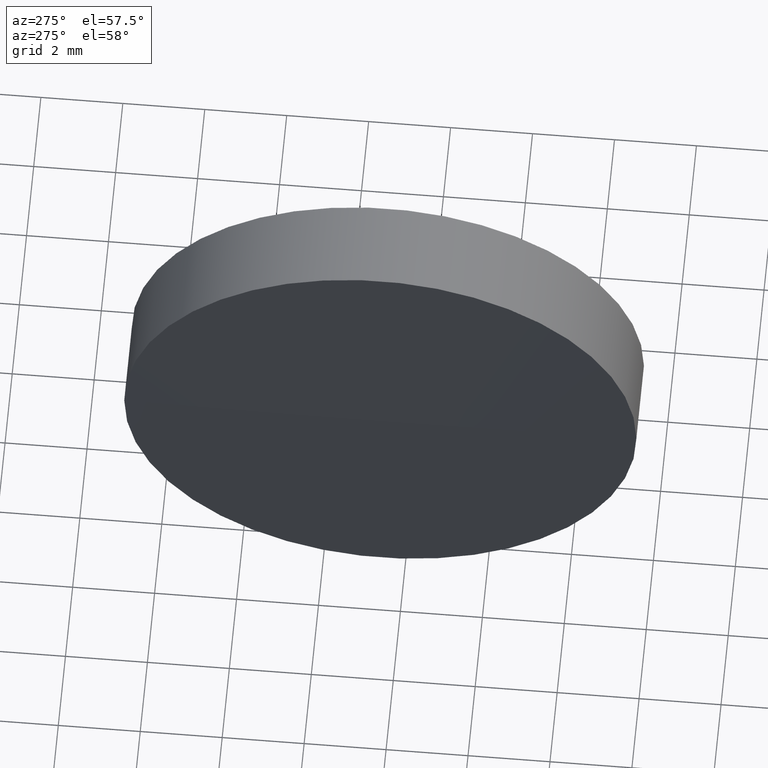
[diagram: clean part render]
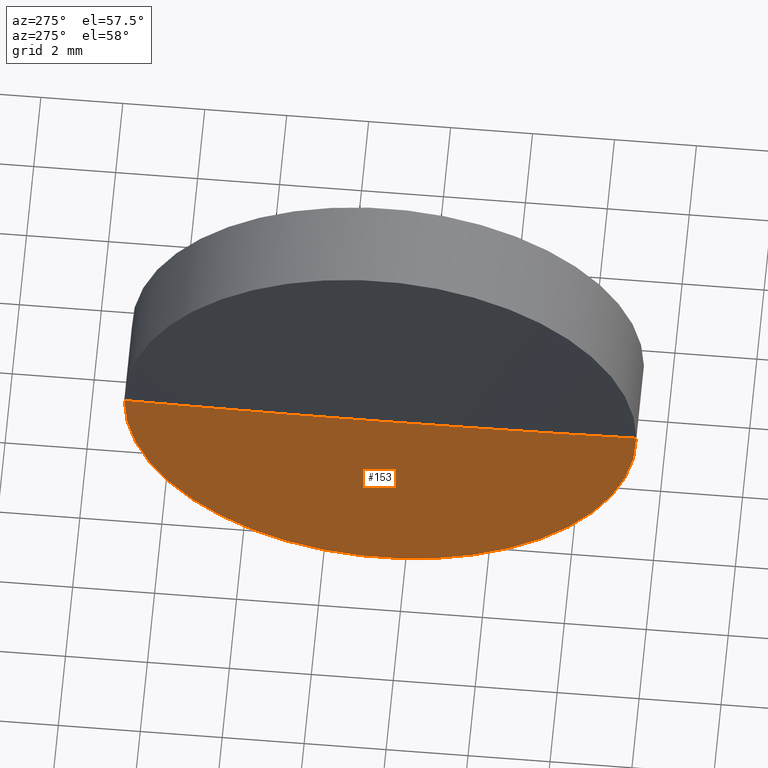
[diagram: same view with one face highlighted and labeled with its STEP entity id]
A machine part, auxiliary view. The second image highlights one B-rep face of the part: STEP entity #153.
In plain terms, the highlighted spherical surface has radius 363 mm.
Its self-contained STEP definition (entity closure, byte-faithful):
#2 = SPHERICAL_SURFACE ( 'NONE', #58, 362.9999999999999400 ) ;
#9 = AXIS2_PLACEMENT_3D ( 'NONE', #81, #12, #70 ) ;
#11 = VERTEX_POINT ( 'NONE', #174 ) ;
#12 = DIRECTION ( 'NONE',  ( -0.0000000000000000000, 0.0000000000000000000, 1.000000000000000000 ) ) ;
#19 = CARTESIAN_POINT ( 'NONE',  ( 424.2936778931471100, 32.60842023547017000, 0.0000000000000000000 ) ) ;
#23 = FACE_OUTER_BOUND ( 'NONE', #84, .T. ) ;
#26 = CIRCLE ( 'NONE', #9, 362.9999999999998900 ) ;
#42 = ORIENTED_EDGE ( 'NONE', *, *, #73, .T. ) ;
#45 = VERTEX_POINT ( 'NONE', #144 ) ;
#49 = DIRECTION ( 'NONE',  ( -0.0000000000000000000, 0.0000000000000000000, -1.000000000000000000 ) ) ;
#56 = AXIS2_PLACEMENT_3D ( 'NONE', #135, #96, #179 ) ;
#58 = AXIS2_PLACEMENT_3D ( 'NONE', #19, #49, #113 ) ;
#70 = DIRECTION ( 'NONE',  ( 1.000000000000000000, 0.0000000000000000000, 0.0000000000000000000 ) ) ;
#73 = EDGE_CURVE ( 'NONE', #11, #45, #187, .T. ) ;
#74 = ORIENTED_EDGE ( 'NONE', *, *, #190, .F. ) ;
#81 = CARTESIAN_POINT ( 'NONE',  ( 424.2936778931471100, 32.60842023547017000, 0.0000000000000000000 ) ) ;
#84 = EDGE_LOOP ( 'NONE', ( #42, #136, #74 ) ) ;
#89 = EDGE_CURVE ( 'NONE', #45, #177, #164, .T. ) ;
#91 = DIRECTION ( 'NONE',  ( 1.110223024625164800E-015, -1.000000000000000000, 0.0000000000000000000 ) ) ;
#94 = CARTESIAN_POINT ( 'NONE',  ( 61.34748697774439600, 32.60842023547016300, 0.0000000000000000000 ) ) ;
#96 = DIRECTION ( 'NONE',  ( -8.496118506040342700E-032, 1.224646799147353200E-016, -1.000000000000000000 ) ) ;
#113 = DIRECTION ( 'NONE',  ( -7.646164081440473900E-016, 1.000000000000000000, 0.0000000000000000000 ) ) ;
#120 = AXIS2_PLACEMENT_3D ( 'NONE', #94, #147, #91 ) ;
#127 = CARTESIAN_POINT ( 'NONE',  ( 61.29367789314715500, 32.60842023546994300, 0.0000000000000000000 ) ) ;
#135 = CARTESIAN_POINT ( 'NONE',  ( 424.2936778931471100, 32.60842023547017000, 0.0000000000000000000 ) ) ;
#136 = ORIENTED_EDGE ( 'NONE', *, *, #89, .T. ) ;
#144 = CARTESIAN_POINT ( 'NONE',  ( 61.34748697774440300, 26.35842023547020900, 0.0000000000000000000 ) ) ;
#147 = DIRECTION ( 'NONE',  ( -1.000000000000000000, -6.937607244762875000E-016, -0.0000000000000000000 ) ) ;
#153 = ADVANCED_FACE ( 'NONE', ( #23 ), #2, .T. ) ;
#164 = CIRCLE ( 'NONE', #56, 362.9999999999999400 ) ;
#174 = CARTESIAN_POINT ( 'NONE',  ( 61.34748697774439600, 38.85842023547012000, 7.654042494670939900E-016 ) ) ;
#177 = VERTEX_POINT ( 'NONE', #127 ) ;
#179 = DIRECTION ( 'NONE',  ( 0.0000000000000000000, 1.000000000000000000, 1.224646799147353200E-016 ) ) ;
#187 = CIRCLE ( 'NONE', #120, 6.249999999999953800 ) ;
#190 = EDGE_CURVE ( 'NONE', #11, #177, #26, .T. ) ;